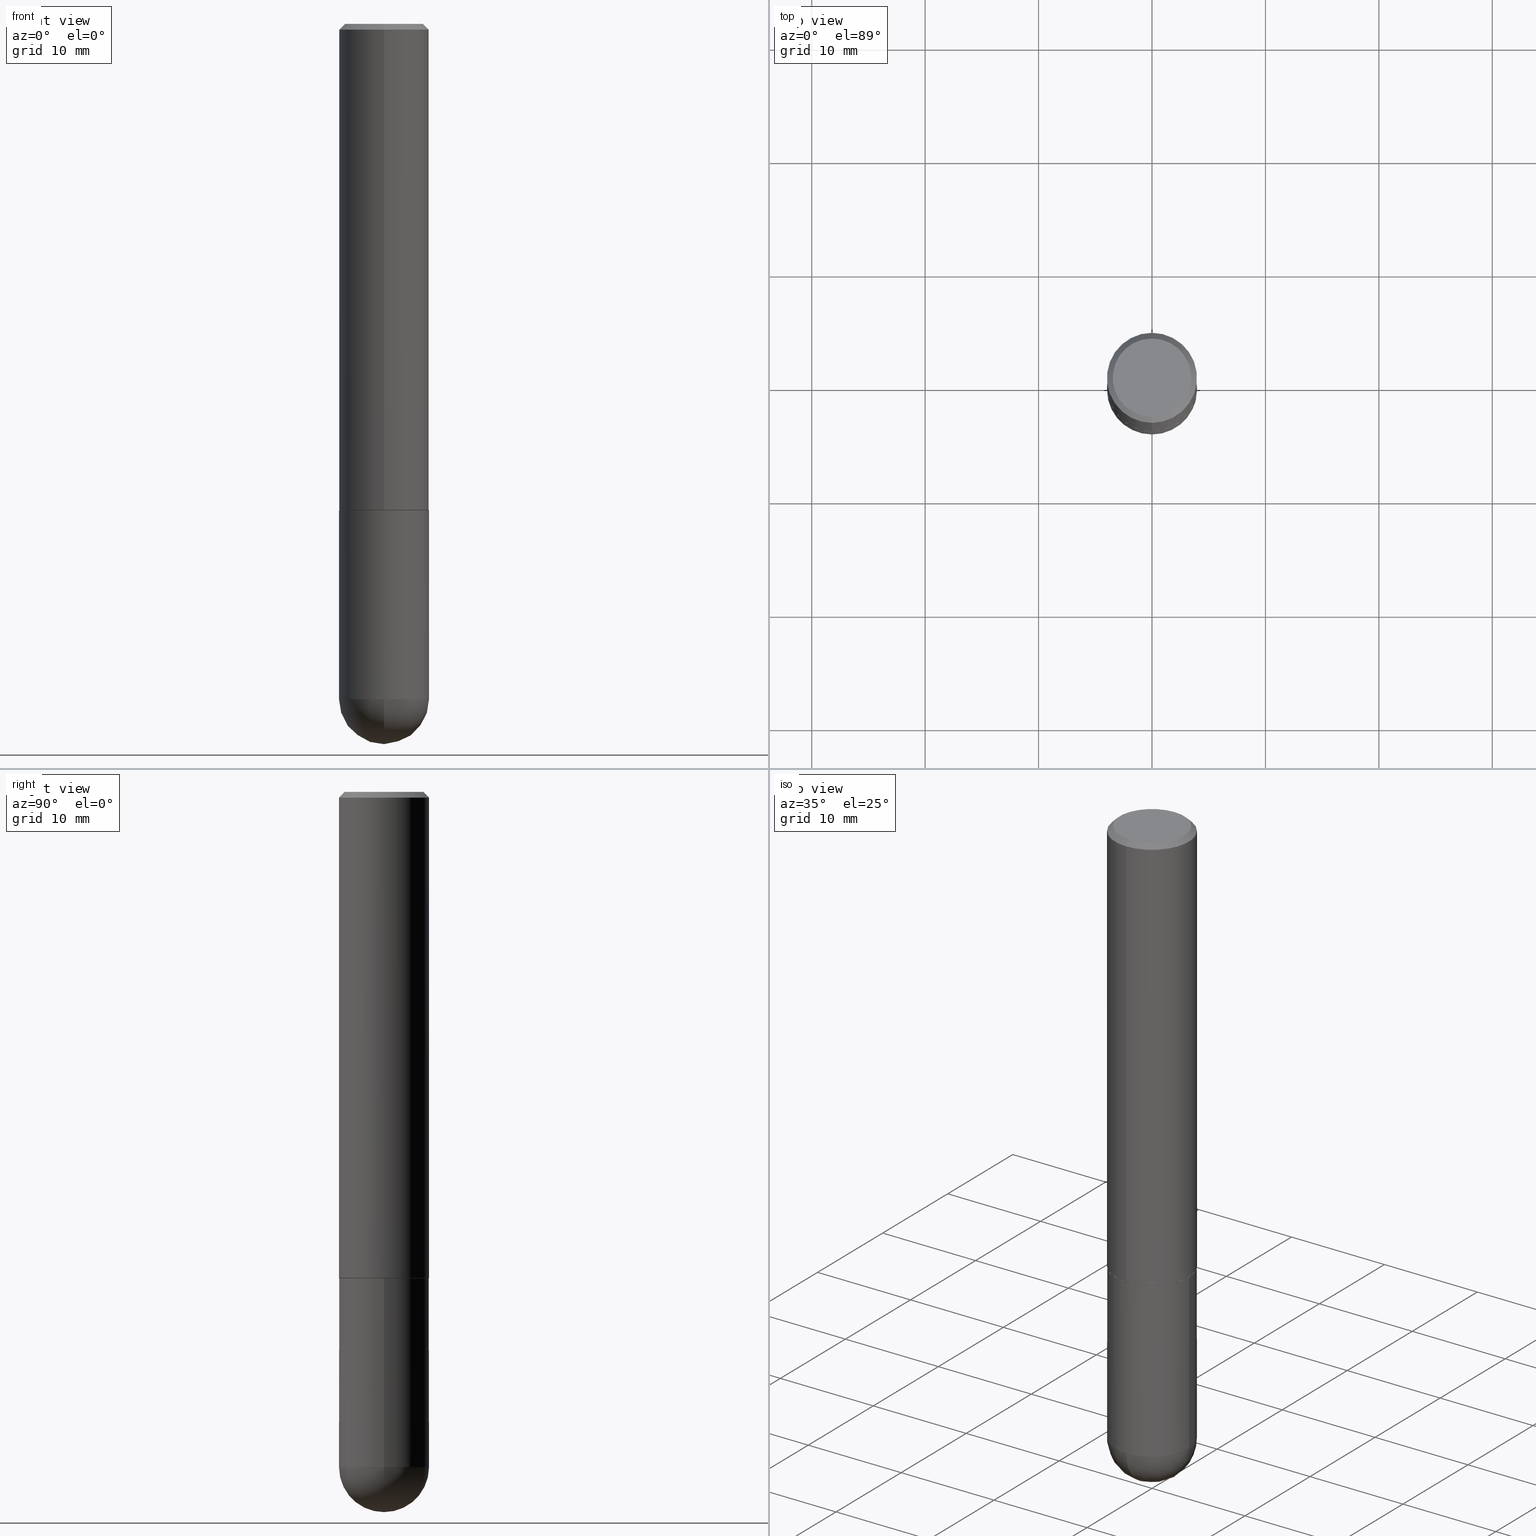
[diagram: canonical four-view strip — front | top / right | iso, engineering-drawing reading convention]
A machine part, canonical four-view strip (front | top / right | iso — engineering-drawing reading convention). The complete STEP part file that produces these views, byte-faithful:
ISO-10303-21;
HEADER;
FILE_DESCRIPTION (( 'STEP AP203' ),
    '1' );
FILE_NAME ('30540.STEP',
    '2024-02-21T16:39:43',
    ( '' ),
    ( '' ),
    'SwSTEP 2.0',
    'SolidWorks 2023',
    '' );
FILE_SCHEMA (( 'CONFIG_CONTROL_DESIGN' ));
ENDSEC;

DATA;
#1 = ORIENTED_EDGE ( 'NONE', *, *, #150, .T. ) ;
#2 = DIRECTION ( 'NONE',  ( -6.982962677686265922E-15, -1.000000000000000000, 3.519288880726909138E-15 ) ) ;
#3 = VERTEX_POINT ( 'NONE', #129 ) ;
#4 = VERTEX_POINT ( 'NONE', #388 ) ;
#5 = ADVANCED_FACE ( 'NONE', ( #305 ), #161, .T. ) ;
#6 = EDGE_CURVE ( 'NONE', #196, #306, #71, .T. ) ;
#7 = DIRECTION ( 'NONE',  ( -2.445372692446252269E-29, 3.491618979187682229E-15, 1.000000000000000000 ) ) ;
#8 = CARTESIAN_POINT ( 'NONE',  ( 4.890745384892512385E-31, -6.983237958375376735E-17, -0.02000000000000003511 ) ) ;
#9 = CARTESIAN_POINT ( 'NONE',  ( 5.731567514496413899E-29, -8.183159387913622595E-15, -2.343750000000000000 ) ) ;
#10 = ADVANCED_FACE ( 'NONE', ( #200 ), #192, .F. ) ;
#11 = AXIS2_PLACEMENT_3D ( 'NONE', #37, #156, #62 ) ;
#12 = APPROVAL_PERSON_ORGANIZATION ( #283, #134, #206 ) ;
#13 = DIRECTION ( 'NONE',  ( 1.000000000000000000, 0.000000000000000000, 0.000000000000000000 ) ) ;
#14 = DIRECTION ( 'NONE',  ( -1.000000000000000000, 6.982962677686265922E-15, -4.883557194083112340E-29 ) ) ;
#15 = CARTESIAN_POINT ( 'NONE',  ( 9.514286648347543521E-16, 0.1362500000000000933, -4.842607341460512364E-16 ) ) ;
#16 = ORIENTED_EDGE ( 'NONE', *, *, #223, .F. ) ;
#17 = CARTESIAN_POINT ( 'NONE',  ( 1.110223024625157329E-15, 0.1562500000000001388, -5.455654654980758660E-16 ) ) ;
#18 = AXIS2_PLACEMENT_3D ( 'NONE', #135, #58, #65 ) ;
#19 = APPROVAL_PERSON_ORGANIZATION ( #407, #392, #55 ) ;
#20 = CARTESIAN_POINT ( 'NONE',  ( 0.1562500000000000000, -6.984708418355709513E-15, -1.688000000000000167 ) ) ;
#21 = CC_DESIGN_PERSON_AND_ORGANIZATION_ASSIGNMENT ( #86, #250, ( #375 ) ) ;
#22 = CIRCLE ( 'NONE', #89, 0.1562500000000000278 ) ;
#23 = DATE_AND_TIME ( #376, #245 ) ;
#24 = APPROVAL_PERSON_ORGANIZATION ( #50, #355, #123 ) ;
#25 = DIRECTION ( 'NONE',  ( -2.445372692446252269E-29, 3.491618979187682229E-15, 1.000000000000000000 ) ) ;
#26 = PERSON_AND_ORGANIZATION_ROLE ( 'design_owner' ) ;
#27 = EDGE_LOOP ( 'NONE', ( #113, #44, #112, #203, #403 ) ) ;
#28 = DIRECTION ( 'NONE',  ( -2.445372692446252269E-29, 3.491618979187682229E-15, 1.000000000000000000 ) ) ;
#29 = LINE ( 'NONE', #231, #111 ) ;
#30 = EDGE_CURVE ( 'NONE', #168, #4, #142, .T. ) ;
#31 = PERSON_AND_ORGANIZATION ( #398, #298 ) ;
#32 = ORIENTED_EDGE ( 'NONE', *, *, #258, .F. ) ;
#33 = VECTOR ( 'NONE', #265, 39.37007874015748143 ) ;
#34 = CARTESIAN_POINT ( 'NONE',  ( -1.091087918388439336E-15, -0.1562500000000060785, -1.686999999999999611 ) ) ;
#35 = FACE_OUTER_BOUND ( 'NONE', #138, .T. ) ;
#36 = AXIS2_PLACEMENT_3D ( 'NONE', #56, #90, #217 ) ;
#37 = CARTESIAN_POINT ( 'NONE',  ( 0.000000000000000000, 0.000000000000000000, 0.000000000000000000 ) ) ;
#38 = DIRECTION ( 'NONE',  ( 2.445372692446251989E-29, -3.491618979187682229E-15, -1.000000000000000000 ) ) ;
#39 = CARTESIAN_POINT ( 'NONE',  ( 0.1562500000000000000, -1.091087918388479174E-15, 7.619026212181150377E-30 ) ) ;
#40 = CARTESIAN_POINT ( 'NONE',  ( 4.127951344840510809E-29, -5.893620499967230340E-15, -1.688000000000000167 ) ) ;
#41 = CONICAL_SURFACE ( 'NONE', #322, 0.1562500000000000278, 0.7853981633974468357 ) ;
#42 = VERTEX_POINT ( 'NONE', #410 ) ;
#43 = CARTESIAN_POINT ( 'NONE',  ( 0.000000000000000000, 0.000000000000000000, 0.000000000000000000 ) ) ;
#44 = ORIENTED_EDGE ( 'NONE', *, *, #30, .T. ) ;
#45 = DIRECTION ( 'NONE',  ( 0.000000000000000000, 0.000000000000000000, 1.000000000000000000 ) ) ;
#46 = ORIENTED_EDGE ( 'NONE', *, *, #220, .T. ) ;
#47 = AXIS2_PLACEMENT_3D ( 'NONE', #43, #304, #235 ) ;
#48 = VERTEX_POINT ( 'NONE', #121 ) ;
#49 = SECURITY_CLASSIFICATION_LEVEL ( 'unclassified' ) ;
#50 = PERSON_AND_ORGANIZATION ( #398, #298 ) ;
#51 = CALENDAR_DATE ( 2024, 21, 2 ) ;
#52 = EDGE_LOOP ( 'NONE', ( #368, #251 ) ) ;
#53 = DIRECTION ( 'NONE',  ( -2.445372692446252269E-29, 3.491618979187682229E-15, 1.000000000000000000 ) ) ;
#54 = CIRCLE ( 'NONE', #163, 0.1362500000000000933 ) ;
#55 = APPROVAL_ROLE ( '' ) ;
#56 = CARTESIAN_POINT ( 'NONE',  ( 4.127789104849273839E-29, -5.893852836868808719E-15, -1.688000000000000167 ) ) ;
#57 = ORIENTED_EDGE ( 'NONE', *, *, #258, .T. ) ;
#58 = DIRECTION ( 'NONE',  ( -1.000000000000000000, 6.982962677686265922E-15, -4.883557194083112340E-29 ) ) ;
#59 = DIRECTION ( 'NONE',  ( -6.982962677686265922E-15, -1.000000000000000000, 3.491618979187682229E-15 ) ) ;
#60 = CONICAL_SURFACE ( 'NONE', #362, 0.1552499999999999991, 0.7853981633975165577 ) ;
#61 = LOCAL_TIME ( 11, 39, 43.00000000000000000, #210 ) ;
#62 = DIRECTION ( 'NONE',  ( 1.000000000000000000, -6.982962677686266711E-15, 4.876176775795936353E-29 ) ) ;
#63 = ADVANCED_FACE ( 'NONE', ( #124 ), #383, .F. ) ;
#64 = CARTESIAN_POINT ( 'NONE',  ( 5.400447736582527652E-29, -8.657341756053672891E-15, -2.343750000000000000 ) ) ;
#65 = DIRECTION ( 'NONE',  ( 6.982962677686265922E-15, 1.000000000000000000, -3.496765431890251398E-15 ) ) ;
#66 = APPLICATION_PROTOCOL_DEFINITION ( 'international standard', 'config_control_design', 1994, #354 ) ;
#67 = CARTESIAN_POINT ( 'NONE',  ( 4.125343732156827639E-29, -5.890361217889620677E-15, -1.687000000000000055 ) ) ;
#68 =( LENGTH_UNIT ( ) NAMED_UNIT ( * ) SI_UNIT ( $, .METRE. ) );
#69 = MANIFOLD_SOLID_BREP ( 'Body-Move/Copy2[1]', #335 ) ;
#70 = DIRECTION ( 'NONE',  ( 6.982962677686265922E-15, 1.000000000000000000, -3.491618979187682229E-15 ) ) ;
#71 = CIRCLE ( 'NONE', #389, 0.1562500000000002220 ) ;
#72 = AXIS2_PLACEMENT_3D ( 'NONE', #350, #189, #222 ) ;
#73 = ORIENTED_EDGE ( 'NONE', *, *, #220, .F. ) ;
#74 = CARTESIAN_POINT ( 'NONE',  ( -1.110223024625101517E-15, -0.1562500000000085487, -2.343749999999999556 ) ) ;
#75 = EDGE_CURVE ( 'NONE', #3, #196, #319, .T. ) ;
#76 = EDGE_LOOP ( 'NONE', ( #87, #402, #175, #118 ) ) ;
#77 = ORIENTED_EDGE ( 'NONE', *, *, #75, .F. ) ;
#78 = DIRECTION ( 'NONE',  ( -2.445372692446252549E-29, 3.491618979187682229E-15, 1.000000000000000000 ) ) ;
#79 = DIRECTION ( 'NONE',  ( -2.445468806185136877E-29, 3.491481338843145188E-15, 1.000000000000000000 ) ) ;
#80 = ORIENTED_EDGE ( 'NONE', *, *, #325, .F. ) ;
#81 = PERSON_AND_ORGANIZATION ( #398, #298 ) ;
#82 = AXIS2_PLACEMENT_3D ( 'NONE', #318, #28, #2 ) ;
#83 = CIRCLE ( 'NONE', #72, 0.1562500000000000000 ) ;
#84 = CALENDAR_DATE ( 2024, 21, 2 ) ;
#85 = DIRECTION ( 'NONE',  ( 4.937700262164540154E-15, 0.7071067811865440200, -0.7071067811865510144 ) ) ;
#86 = PERSON_AND_ORGANIZATION ( #398, #298 ) ;
#87 = ORIENTED_EDGE ( 'NONE', *, *, #182, .F. ) ;
#88 = DIRECTION ( 'NONE',  ( -2.445468806185136597E-29, 3.491481338843145583E-15, 1.000000000000000000 ) ) ;
#89 = AXIS2_PLACEMENT_3D ( 'NONE', #8, #360, #227 ) ;
#90 = DIRECTION ( 'NONE',  ( -2.445372692446251989E-29, 3.491618979187682229E-15, 1.000000000000000000 ) ) ;
#91 = CC_DESIGN_APPROVAL ( #392, ( #375 ) ) ;
#92 = EDGE_LOOP ( 'NONE', ( #116, #183, #201, #352 ) ) ;
#93 = CARTESIAN_POINT ( 'NONE',  ( -1.084104955710751547E-15, -0.1552500000000059110, -1.687999999999999501 ) ) ;
#94 = EDGE_CURVE ( 'NONE', #169, #48, #323, .T. ) ;
#95 = CONICAL_SURFACE ( 'NONE', #336, 0.1552499999999999991, 0.7853981633975165577 ) ;
#96 = FACE_OUTER_BOUND ( 'NONE', #369, .T. ) ;
#97 = PRODUCT_DEFINITION_FORMATION_WITH_SPECIFIED_SOURCE ( 'ANY', '', #273, .NOT_KNOWN. ) ;
#98 = EDGE_CURVE ( 'NONE', #337, #285, #29, .T. ) ;
#99 = DIRECTION ( 'NONE',  ( -2.445372692446252269E-29, 3.491618979187682229E-15, 1.000000000000000000 ) ) ;
#100 = UNCERTAINTY_MEASURE_WITH_UNIT (LENGTH_MEASURE( 1.000000000000000082E-05 ), #162, 'distance_accuracy_value', 'NONE');
#101 = DIRECTION ( 'NONE',  ( -2.445468806185136877E-29, 3.491481338843145188E-15, 1.000000000000000000 ) ) ;
#102 = DIRECTION ( 'NONE',  ( -6.982962677686265922E-15, -1.000000000000000000, 3.491618979187682623E-15 ) ) ;
#103 = DIRECTION ( 'NONE',  ( 2.445372692446252269E-29, -3.491618979187682229E-15, -1.000000000000000000 ) ) ;
#104 = CIRCLE ( 'NONE', #310, 0.1562500000000002498 ) ;
#105 = DIRECTION ( 'NONE',  ( -2.445372692446252269E-29, 3.491618979187682229E-15, 1.000000000000000000 ) ) ;
#106 = DIRECTION ( 'NONE',  ( 1.000000000000000000, -6.982962677686262766E-15, 0.000000000000000000 ) ) ;
#107 = CARTESIAN_POINT ( 'NONE',  ( 1.106670310946397649E-15, 0.1552499999999940872, -1.688000000000000611 ) ) ;
#108 = CARTESIAN_POINT ( 'NONE',  ( 1.110223024625178431E-15, 0.1562499999999943379, -1.687000000000000499 ) ) ;
#109 = ORIENTED_EDGE ( 'NONE', *, *, #148, .T. ) ;
#110 =( NAMED_UNIT ( * ) SI_UNIT ( $, .STERADIAN. ) SOLID_ANGLE_UNIT ( ) );
#111 = VECTOR ( 'NONE', #145, 39.37007874015748143 ) ;
#112 = ORIENTED_EDGE ( 'NONE', *, *, #171, .F. ) ;
#113 = ORIENTED_EDGE ( 'NONE', *, *, #223, .T. ) ;
#114 = DIRECTION ( 'NONE',  ( 2.438088387897960049E-29, -3.491481338843145188E-15, -1.000000000000000000 ) ) ;
#115 = FACE_OUTER_BOUND ( 'NONE', #27, .T. ) ;
#116 = ORIENTED_EDGE ( 'NONE', *, *, #6, .T. ) ;
#117 = PERSON_AND_ORGANIZATION_ROLE ( 'creator' ) ;
#118 = ORIENTED_EDGE ( 'NONE', *, *, #94, .F. ) ;
#119 = CIRCLE ( 'NONE', #357, 0.1562500000000000000 ) ;
#120 = APPROVAL_DATE_TIME ( #379, #392 ) ;
#121 = CARTESIAN_POINT ( 'NONE',  ( 1.091087918388479765E-15, 0.1562499999999999722, -0.02000000000000057981 ) ) ;
#122 = VERTEX_POINT ( 'NONE', #107 ) ;
#123 = APPROVAL_ROLE ( '' ) ;
#124 = FACE_OUTER_BOUND ( 'NONE', #52, .T. ) ;
#125 = CC_DESIGN_DATE_AND_TIME_ASSIGNMENT ( #216, #247, ( #219 ) ) ;
#126 = DIRECTION ( 'NONE',  ( -6.982962677686265922E-15, -1.000000000000000000, 3.491618979187682229E-15 ) ) ;
#127 = EDGE_CURVE ( 'NONE', #317, #151, #236, .T. ) ;
#128 = CIRCLE ( 'NONE', #82, 0.1552499999999999991 ) ;
#129 = CARTESIAN_POINT ( 'NONE',  ( -1.084104955710751547E-15, -0.1552500000000059110, -1.687999999999999501 ) ) ;
#130 = CC_DESIGN_PERSON_AND_ORGANIZATION_ASSIGNMENT ( #81, #382, ( #97 ) ) ;
#131 = AXIS2_PLACEMENT_3D ( 'NONE', #238, #397, #167 ) ;
#132 = DIRECTION ( 'NONE',  ( 6.982962677686265922E-15, 1.000000000000000000, 0.000000000000000000 ) ) ;
#133 = SPHERICAL_SURFACE ( 'NONE', #18, 0.1562500000000002498 ) ;
#134 = APPROVAL ( #177, 'UNSPECIFIED' ) ;
#135 = CARTESIAN_POINT ( 'NONE',  ( 5.400447736582527652E-29, -8.657341756053672891E-15, -2.343750000000000000 ) ) ;
#136 = AXIS2_PLACEMENT_3D ( 'NONE', #358, #25, #353 ) ;
#137 = CC_DESIGN_APPROVAL ( #355, ( #219 ) ) ;
#138 = EDGE_LOOP ( 'NONE', ( #308, #281, #248, #16 ) ) ;
#139 = CARTESIAN_POINT ( 'NONE',  ( 5.789233224183170584E-29, -9.193318162129576161E-15, -2.500000000000000000 ) ) ;
#140 = EDGE_CURVE ( 'NONE', #151, #290, #359, .T. ) ;
#141 = DIRECTION ( 'NONE',  ( 6.982962677686265922E-15, 1.000000000000000000, -3.496765431890251398E-15 ) ) ;
#142 = LINE ( 'NONE', #400, #366 ) ;
#143 = VERTEX_POINT ( 'NONE', #139 ) ;
#144 = CARTESIAN_POINT ( 'NONE',  ( 4.127789104849273839E-29, -5.893852836868808719E-15, -1.688000000000000167 ) ) ;
#145 = DIRECTION ( 'NONE',  ( -4.851104656540956386E-15, -0.7071067811865489050, -0.7071067811865461294 ) ) ;
#146 = COORDINATED_UNIVERSAL_TIME_OFFSET ( 5, 0, .BEHIND. ) ;
#147 = PERSON_AND_ORGANIZATION ( #398, #298 ) ;
#148 = EDGE_CURVE ( 'NONE', #169, #337, #199, .T. ) ;
#149 = PERSON_AND_ORGANIZATION ( #398, #298 ) ;
#150 = EDGE_CURVE ( 'NONE', #196, #285, #387, .T. ) ;
#151 = VERTEX_POINT ( 'NONE', #321 ) ;
#152 = DIRECTION ( 'NONE',  ( -6.982962677686265922E-15, -1.000000000000000000, 3.496765431890251792E-15 ) ) ;
#153 = CC_DESIGN_PERSON_AND_ORGANIZATION_ASSIGNMENT ( #149, #243, ( #97 ) ) ;
#154 = DIRECTION ( 'NONE',  ( 1.000000000000000000, -6.982962677686266711E-15, 4.876176775795936353E-29 ) ) ;
#155 = AXIS2_PLACEMENT_3D ( 'NONE', #40, #229, #309 ) ;
#156 = DIRECTION ( 'NONE',  ( -2.445468806185136597E-29, 3.491481338843145583E-15, 1.000000000000000000 ) ) ;
#157 = AXIS2_PLACEMENT_3D ( 'NONE', #333, #105, #59 ) ;
#158 = CARTESIAN_POINT ( 'NONE',  ( 4.125343732156827639E-29, -5.890361217889620677E-15, -1.687000000000000055 ) ) ;
#159 = ADVANCED_FACE ( 'NONE', ( #115 ), #252, .T. ) ;
#160 = CARTESIAN_POINT ( 'NONE',  ( 4.890745384892512385E-31, -6.983237958375376735E-17, -0.02000000000000003511 ) ) ;
#161 = CONICAL_SURFACE ( 'NONE', #131, 0.1562500000000000278, 0.7853981633974468357 ) ;
#162 =( CONVERSION_BASED_UNIT ( 'INCH', #173 ) LENGTH_UNIT ( ) NAMED_UNIT ( #221 ) );
#163 = AXIS2_PLACEMENT_3D ( 'NONE', #255, #7, #126 ) ;
#164 = LOCAL_TIME ( 11, 39, 43.00000000000000000, #146 ) ;
#165 = CARTESIAN_POINT ( 'NONE',  ( 5.731567514496413899E-29, -8.183159387913622595E-15, -2.343750000000000000 ) ) ;
#166 = FACE_OUTER_BOUND ( 'NONE', #339, .T. ) ;
#167 = DIRECTION ( 'NONE',  ( 6.982962677686266711E-15, 1.000000000000000000, -3.496765431890256131E-15 ) ) ;
#168 = VERTEX_POINT ( 'NONE', #262 ) ;
#169 = VERTEX_POINT ( 'NONE', #391 ) ;
#170 = CYLINDRICAL_SURFACE ( 'NONE', #47, 0.1562500000000001388 ) ;
#171 = EDGE_CURVE ( 'NONE', #290, #4, #83, .T. ) ;
#172 = ORIENTED_EDGE ( 'NONE', *, *, #300, .F. ) ;
#173 = LENGTH_MEASURE_WITH_UNIT ( LENGTH_MEASURE( 0.02539999999999999897 ), #68 );
#174 = AXIS2_PLACEMENT_3D ( 'NONE', #198, #114, #338 ) ;
#175 = ORIENTED_EDGE ( 'NONE', *, *, #261, .T. ) ;
#176 = SHAPE_DEFINITION_REPRESENTATION ( #280, #264 ) ;
#177 = APPROVAL_STATUS ( 'not_yet_approved' ) ;
#178 = DIRECTION ( 'NONE',  ( -6.982962677686266711E-15, -1.000000000000000000, 3.496765431890256131E-15 ) ) ;
#179 = CIRCLE ( 'NONE', #406, 0.1562500000000000278 ) ;
#180 = APPROVAL_STATUS ( 'not_yet_approved' ) ;
#181 = DIRECTION ( 'NONE',  ( -6.982962677686265922E-15, -1.000000000000000000, 3.519288880726909138E-15 ) ) ;
#182 = EDGE_CURVE ( 'NONE', #337, #169, #54, .T. ) ;
#183 = ORIENTED_EDGE ( 'NONE', *, *, #302, .T. ) ;
#184 = CARTESIAN_POINT ( 'NONE',  ( -1.091087918388479962E-15, -0.1562500000000001388, 5.455654654980758660E-16 ) ) ;
#185 = AXIS2_PLACEMENT_3D ( 'NONE', #232, #363, #106 ) ;
#186 = CARTESIAN_POINT ( 'NONE',  ( 0.000000000000000000, 0.000000000000000000, 0.000000000000000000 ) ) ;
#187 = DIRECTION ( 'NONE',  ( -2.445468806185136597E-29, 3.491481338843145583E-15, 1.000000000000000000 ) ) ;
#188 = AXIS2_PLACEMENT_3D ( 'NONE', #165, #286, #328 ) ;
#189 = DIRECTION ( 'NONE',  ( -2.445468806185136597E-29, 3.491481338843145583E-15, 1.000000000000000000 ) ) ;
#190 = LOCAL_TIME ( 11, 39, 43.00000000000000000, #282 ) ;
#191 = EDGE_CURVE ( 'NONE', #3, #122, #324, .T. ) ;
#192 = PLANE ( 'NONE',  #197 ) ;
#193 = DIRECTION ( 'NONE',  ( 1.000000000000000000, -6.982962677686262766E-15, 0.000000000000000000 ) ) ;
#194 = ORIENTED_EDGE ( 'NONE', *, *, #191, .T. ) ;
#195 = CARTESIAN_POINT ( 'NONE',  ( -1.071952812151801412E-15, -0.1562500000000001110, -0.01999999999999948694 ) ) ;
#196 = VERTEX_POINT ( 'NONE', #34 ) ;
#197 = AXIS2_PLACEMENT_3D ( 'NONE', #15, #38, #70 ) ;
#198 = CARTESIAN_POINT ( 'NONE',  ( 1.091087918388520392E-15, 0.1562499999999940881, -1.688000000000000611 ) ) ;
#199 = CIRCLE ( 'NONE', #157, 0.1362500000000000933 ) ;
#200 = FACE_OUTER_BOUND ( 'NONE', #411, .T. ) ;
#201 = ORIENTED_EDGE ( 'NONE', *, *, #261, .F. ) ;
#202 = MANIFOLD_SOLID_BREP ( 'Body-Move/Copy2[2]', #356 ) ;
#203 = ORIENTED_EDGE ( 'NONE', *, *, #140, .F. ) ;
#204 = ORIENTED_EDGE ( 'NONE', *, *, #259, .F. ) ;
#205 = FACE_OUTER_BOUND ( 'NONE', #279, .T. ) ;
#206 = APPROVAL_ROLE ( '' ) ;
#207 = AXIS2_PLACEMENT_3D ( 'NONE', #9, #88, #299 ) ;
#208 = ADVANCED_FACE ( 'NONE', ( #386 ), #41, .T. ) ;
#209 = CARTESIAN_POINT ( 'NONE',  ( 1.091087918388479765E-15, 0.1562499999999999722, -0.02000000000000057981 ) ) ;
#210 = COORDINATED_UNIVERSAL_TIME_OFFSET ( 5, 0, .BEHIND. ) ;
#211 = ORIENTED_EDGE ( 'NONE', *, *, #171, .T. ) ;
#212 = APPROVAL_DATE_TIME ( #348, #355 ) ;
#213 = ORIENTED_EDGE ( 'NONE', *, *, #271, .T. ) ;
#214 = DIRECTION ( 'NONE',  ( -1.000000000000000000, 7.105427357601001070E-15, -4.926315508542082329E-29 ) ) ;
#215 = CIRCLE ( 'NONE', #207, 0.1562500000000000000 ) ;
#216 = DATE_AND_TIME ( #344, #164 ) ;
#217 = DIRECTION ( 'NONE',  ( -6.982962677686265922E-15, -1.000000000000000000, 3.491618979187682229E-15 ) ) ;
#218 = ADVANCED_FACE ( 'NONE', ( #96 ), #331, .T. ) ;
#219 = PRODUCT_DEFINITION ( 'UNKNOWN', '', #97, #278 ) ;
#220 = EDGE_CURVE ( 'NONE', #122, #306, #412, .T. ) ;
#221 = DIMENSIONAL_EXPONENTS ( 1.000000000000000000, 0.000000000000000000, 0.000000000000000000, 0.000000000000000000, 0.000000000000000000, 0.000000000000000000, 0.000000000000000000 ) ;
#222 = DIRECTION ( 'NONE',  ( 1.000000000000000000, -6.982962677686269077E-15, 0.000000000000000000 ) ) ;
#223 = EDGE_CURVE ( 'NONE', #42, #168, #215, .T. ) ;
#224 = CC_DESIGN_PERSON_AND_ORGANIZATION_ASSIGNMENT ( #31, #26, ( #273 ) ) ;
#225 = DIRECTION ( 'NONE',  ( 6.982962677686266711E-15, 1.000000000000000000, -3.496765431890256131E-15 ) ) ;
#226 = ADVANCED_FACE ( 'NONE', ( #327 ), #381, .T. ) ;
#227 = DIRECTION ( 'NONE',  ( -6.982962677686266711E-15, -1.000000000000000000, 3.496765431890256131E-15 ) ) ;
#228 = CIRCLE ( 'NONE', #155, 0.1562500000000000000 ) ;
#229 = DIRECTION ( 'NONE',  ( -2.445468806185136597E-29, 3.491481338843145583E-15, 1.000000000000000000 ) ) ;
#230 = DIRECTION ( 'NONE',  ( -2.445372692446252269E-29, 3.491618979187682229E-15, 1.000000000000000000 ) ) ;
#231 = CARTESIAN_POINT ( 'NONE',  ( -1.071952812151801412E-15, -0.1562500000000001110, -0.01999999999999948694 ) ) ;
#232 = CARTESIAN_POINT ( 'NONE',  ( 5.731567514496413899E-29, -8.183159387913622595E-15, -2.343750000000000000 ) ) ;
#233 = ORIENTED_EDGE ( 'NONE', *, *, #94, .T. ) ;
#234 = FACE_OUTER_BOUND ( 'NONE', #371, .T. ) ;
#235 = DIRECTION ( 'NONE',  ( -6.982962677686265922E-15, -1.000000000000000000, 3.491618979187682623E-15 ) ) ;
#236 = CIRCLE ( 'NONE', #188, 0.1562500000000000000 ) ;
#237 = CC_DESIGN_APPROVAL ( #134, ( #97 ) ) ;
#238 = CARTESIAN_POINT ( 'NONE',  ( 4.890745384892512385E-31, -6.983237958375376735E-17, -0.02000000000000003511 ) ) ;
#239 = ORIENTED_EDGE ( 'NONE', *, *, #6, .F. ) ;
#240 = CARTESIAN_POINT ( 'NONE',  ( 5.400447736582527652E-29, -8.657341756053672891E-15, -2.343750000000000000 ) ) ;
#241 = ORIENTED_EDGE ( 'NONE', *, *, #302, .F. ) ;
#242 = ORIENTED_EDGE ( 'NONE', *, *, #148, .F. ) ;
#243 = PERSON_AND_ORGANIZATION_ROLE ( 'creator' ) ;
#244 = EDGE_CURVE ( 'NONE', #48, #285, #22, .T. ) ;
#245 = LOCAL_TIME ( 11, 39, 43.00000000000000000, #253 ) ;
#246 = CC_DESIGN_PERSON_AND_ORGANIZATION_ASSIGNMENT ( #147, #117, ( #219 ) ) ;
#247 = DATE_TIME_ROLE ( 'creation_date' ) ;
#248 = ORIENTED_EDGE ( 'NONE', *, *, #326, .F. ) ;
#249 = EDGE_CURVE ( 'NONE', #143, #42, #260, .T. ) ;
#250 = PERSON_AND_ORGANIZATION_ROLE ( 'classification_officer' ) ;
#251 = ORIENTED_EDGE ( 'NONE', *, *, #271, .F. ) ;
#252 = CYLINDRICAL_SURFACE ( 'NONE', #11, 0.1562500000000000000 ) ;
#253 = COORDINATED_UNIVERSAL_TIME_OFFSET ( 5, 0, .BEHIND. ) ;
#254 = ADVANCED_FACE ( 'NONE', ( #35 ), #133, .T. ) ;
#255 = CARTESIAN_POINT ( 'NONE',  ( 4.170655623331656744E-46, -5.955059682748427173E-32, -1.705529646345850364E-17 ) ) ;
#256 = CIRCLE ( 'NONE', #390, 0.1562500000000002220 ) ;
#257 = CC_DESIGN_SECURITY_CLASSIFICATION ( #375, ( #97 ) ) ;
#258 = EDGE_CURVE ( 'NONE', #306, #196, #256, .T. ) ;
#259 = EDGE_CURVE ( 'NONE', #143, #317, #104, .T. ) ;
#260 = CIRCLE ( 'NONE', #330, 0.1562500000000002498 ) ;
#261 = EDGE_CURVE ( 'NONE', #285, #48, #179, .T. ) ;
#262 = CARTESIAN_POINT ( 'NONE',  ( -0.1562500000000000000, -5.928166919315270321E-15, -2.343750000000000000 ) ) ;
#263 = ADVANCED_FACE ( 'NONE', ( #316 ), #60, .T. ) ;
#264 = ADVANCED_BREP_SHAPE_REPRESENTATION ( '30540', ( #69, #202, #315 ), #346 ) ;
#265 = DIRECTION ( 'NONE',  ( -2.445372692446252549E-29, 3.491618979187682229E-15, 1.000000000000000000 ) ) ;
#266 = DIRECTION ( 'NONE',  ( -2.445372692446252269E-29, 3.491618979187682229E-15, 1.000000000000000000 ) ) ;
#267 = DIRECTION ( 'NONE',  ( -7.105427357601000281E-15, -1.000000000000000000, 0.000000000000000000 ) ) ;
#268 = VECTOR ( 'NONE', #101, 39.37007874015748143 ) ;
#269 = DIRECTION ( 'NONE',  ( -2.445468806185136597E-29, 3.491481338843145583E-15, 1.000000000000000000 ) ) ;
#270 = EDGE_LOOP ( 'NONE', ( #194, #46, #239, #77 ) ) ;
#271 = EDGE_CURVE ( 'NONE', #122, #3, #128, .T. ) ;
#272 = PLANE ( 'NONE',  #174 ) ;
#273 = PRODUCT ( '30540', '30540', '', ( #334 ) ) ;
#274 = ADVANCED_FACE ( 'NONE', ( #370 ), #272, .F. ) ;
#275 = ORIENTED_EDGE ( 'NONE', *, *, #75, .T. ) ;
#276 = ADVANCED_FACE ( 'NONE', ( #166 ), #170, .T. ) ;
#277 = DIRECTION ( 'NONE',  ( -2.445372692446252269E-29, 3.491618979187682229E-15, 1.000000000000000000 ) ) ;
#278 = DESIGN_CONTEXT ( 'detailed design', #289, 'design' ) ;
#279 = EDGE_LOOP ( 'NONE', ( #73, #213, #275, #32 ) ) ;
#280 = PRODUCT_DEFINITION_SHAPE ( 'NONE', 'NONE',  #219 ) ;
#281 = ORIENTED_EDGE ( 'NONE', *, *, #259, .T. ) ;
#282 = COORDINATED_UNIVERSAL_TIME_OFFSET ( 5, 0, .BEHIND. ) ;
#283 = PERSON_AND_ORGANIZATION ( #398, #298 ) ;
#284 = ADVANCED_FACE ( 'NONE', ( #234 ), #307, .T. ) ;
#285 = VERTEX_POINT ( 'NONE', #195 ) ;
#286 = DIRECTION ( 'NONE',  ( -2.445468806185136597E-29, 3.491481338843145583E-15, 1.000000000000000000 ) ) ;
#287 = DATE_AND_TIME ( #311, #190 ) ;
#288 = DIRECTION ( 'NONE',  ( -2.445372692446252269E-29, 3.491618979187682229E-15, 1.000000000000000000 ) ) ;
#289 = APPLICATION_CONTEXT ( 'configuration controlled 3d designs of mechanical parts and assemblies' ) ;
#290 = VERTEX_POINT ( 'NONE', #20 ) ;
#291 = CARTESIAN_POINT ( 'NONE',  ( 4.127789104849273839E-29, -5.893852836868808719E-15, -1.688000000000000167 ) ) ;
#292 = DIRECTION ( 'NONE',  ( -4.937700262164884886E-15, -0.7071067811865933139, 0.7071067811865017205 ) ) ;
#293 = COORDINATED_UNIVERSAL_TIME_OFFSET ( 5, 0, .BEHIND. ) ;
#294 = EDGE_LOOP ( 'NONE', ( #211, #377 ) ) ;
#295 = VECTOR ( 'NONE', #85, 39.37007874015748143 ) ;
#296 = PRODUCT_RELATED_PRODUCT_CATEGORY ( 'detail', '', ( #273 ) ) ;
#297 = CARTESIAN_POINT ( 'NONE',  ( 0.000000000000000000, 0.000000000000000000, 0.000000000000000000 ) ) ;
#298 = ORGANIZATION ( 'UNSPECIFIED', 'UNSPECIFIED', '' ) ;
#299 = DIRECTION ( 'NONE',  ( 1.000000000000000000, -6.982962677686262766E-15, 0.000000000000000000 ) ) ;
#300 = EDGE_CURVE ( 'NONE', #4, #290, #228, .T. ) ;
#301 = DIRECTION ( 'NONE',  ( 5.024295867788404755E-15, 0.7071067811865981989, 0.7071067811864968355 ) ) ;
#302 = EDGE_CURVE ( 'NONE', #306, #48, #396, .T. ) ;
#303 = CARTESIAN_POINT ( 'NONE',  ( 0.000000000000000000, 0.000000000000000000, 0.000000000000000000 ) ) ;
#304 = DIRECTION ( 'NONE',  ( -2.445372692446252269E-29, 3.491618979187682229E-15, 1.000000000000000000 ) ) ;
#305 = FACE_OUTER_BOUND ( 'NONE', #399, .T. ) ;
#306 = VERTEX_POINT ( 'NONE', #108 ) ;
#307 = SPHERICAL_SURFACE ( 'NONE', #345, 0.1562500000000002498 ) ;
#308 = ORIENTED_EDGE ( 'NONE', *, *, #249, .F. ) ;
#309 = DIRECTION ( 'NONE',  ( 1.000000000000000000, -6.982962677686269077E-15, 0.000000000000000000 ) ) ;
#310 = AXIS2_PLACEMENT_3D ( 'NONE', #393, #214, #267 ) ;
#311 = CALENDAR_DATE ( 2024, 21, 2 ) ;
#312 = ORIENTED_EDGE ( 'NONE', *, *, #30, .F. ) ;
#313 = APPLICATION_PROTOCOL_DEFINITION ( 'international standard', 'config_control_design', 1994, #289 ) ;
#314 = VECTOR ( 'NONE', #301, 39.37007874015748143 ) ;
#315 = AXIS2_PLACEMENT_3D ( 'NONE', #303, #45, #13 ) ;
#316 = FACE_OUTER_BOUND ( 'NONE', #270, .T. ) ;
#317 = VERTEX_POINT ( 'NONE', #74 ) ;
#318 = CARTESIAN_POINT ( 'NONE',  ( 4.127789104849273839E-29, -5.893852836868808719E-15, -1.688000000000000167 ) ) ;
#319 = LINE ( 'NONE', #93, #384 ) ;
#320 = ORIENTED_EDGE ( 'NONE', *, *, #244, .T. ) ;
#321 = CARTESIAN_POINT ( 'NONE',  ( 0.1562500000000000000, -8.129477862328905246E-15, -2.343750000000000000 ) ) ;
#322 = AXIS2_PLACEMENT_3D ( 'NONE', #160, #103, #225 ) ;
#323 = LINE ( 'NONE', #209, #295 ) ;
#324 = CIRCLE ( 'NONE', #136, 0.1552499999999999991 ) ;
#325 = EDGE_CURVE ( 'NONE', #151, #42, #372, .T. ) ;
#326 = EDGE_CURVE ( 'NONE', #168, #317, #119, .T. ) ;
#327 = FACE_OUTER_BOUND ( 'NONE', #92, .T. ) ;
#328 = DIRECTION ( 'NONE',  ( 1.000000000000000000, -6.982962677686262766E-15, 0.000000000000000000 ) ) ;
#329 = CARTESIAN_POINT ( 'NONE',  ( 1.103117597267596553E-15, 0.1552499999999940872, -1.688000000000000611 ) ) ;
#330 = AXIS2_PLACEMENT_3D ( 'NONE', #64, #361, #132 ) ;
#331 = CYLINDRICAL_SURFACE ( 'NONE', #367, 0.1562500000000000000 ) ;
#332 = CARTESIAN_POINT ( 'NONE',  ( -1.003347832174086672E-15, -0.1362500000000000933, 4.586777894508634656E-16 ) ) ;
#333 = CARTESIAN_POINT ( 'NONE',  ( 4.170655623331656744E-46, -5.955059682748427173E-32, -1.705529646345850364E-17 ) ) ;
#334 = MECHANICAL_CONTEXT ( 'NONE', #354, 'mechanical' ) ;
#335 = CLOSED_SHELL ( 'NONE', ( #159, #254, #284, #274, #218 ) ) ;
#336 = AXIS2_PLACEMENT_3D ( 'NONE', #144, #277, #342 ) ;
#337 = VERTEX_POINT ( 'NONE', #332 ) ;
#338 = DIRECTION ( 'NONE',  ( -1.000000000000000000, 6.982962677686265922E-15, -4.876176775795935793E-29 ) ) ;
#339 = EDGE_LOOP ( 'NONE', ( #241, #57, #1, #380 ) ) ;
#340 = ORIENTED_EDGE ( 'NONE', *, *, #127, .F. ) ;
#341 = ORIENTED_EDGE ( 'NONE', *, *, #140, .T. ) ;
#342 = DIRECTION ( 'NONE',  ( -6.982962677686265922E-15, -1.000000000000000000, 3.519288880726909138E-15 ) ) ;
#343 = ORIENTED_EDGE ( 'NONE', *, *, #182, .T. ) ;
#344 = CALENDAR_DATE ( 2024, 21, 2 ) ;
#345 = AXIS2_PLACEMENT_3D ( 'NONE', #240, #14, #141 ) ;
#346 =( GEOMETRIC_REPRESENTATION_CONTEXT ( 3 ) GLOBAL_UNCERTAINTY_ASSIGNED_CONTEXT ( ( #100 ) ) GLOBAL_UNIT_ASSIGNED_CONTEXT ( ( #162, #404, #110 ) ) REPRESENTATION_CONTEXT ( 'NONE', 'WORKASPACE' ) );
#347 = CC_DESIGN_DATE_AND_TIME_ASSIGNMENT ( #287, #409, ( #375 ) ) ;
#348 = DATE_AND_TIME ( #51, #374 ) ;
#349 = ORIENTED_EDGE ( 'NONE', *, *, #249, .T. ) ;
#350 = CARTESIAN_POINT ( 'NONE',  ( 4.127951344840510809E-29, -5.893620499967230340E-15, -1.688000000000000167 ) ) ;
#351 = APPROVAL_STATUS ( 'not_yet_approved' ) ;
#352 = ORIENTED_EDGE ( 'NONE', *, *, #150, .F. ) ;
#353 = DIRECTION ( 'NONE',  ( -6.982962677686265922E-15, -1.000000000000000000, 3.519288880726909138E-15 ) ) ;
#354 = APPLICATION_CONTEXT ( 'configuration controlled 3d designs of mechanical parts and assemblies' ) ;
#355 = APPROVAL ( #351, 'UNSPECIFIED' ) ;
#356 = CLOSED_SHELL ( 'NONE', ( #263, #226, #208, #5, #276, #378, #63, #10 ) ) ;
#357 = AXIS2_PLACEMENT_3D ( 'NONE', #365, #269, #193 ) ;
#358 = CARTESIAN_POINT ( 'NONE',  ( 4.127789104849273839E-29, -5.893852836868808719E-15, -1.688000000000000167 ) ) ;
#359 = LINE ( 'NONE', #39, #268 ) ;
#360 = DIRECTION ( 'NONE',  ( -2.445372692446252269E-29, 3.491618979187682229E-15, 1.000000000000000000 ) ) ;
#361 = DIRECTION ( 'NONE',  ( 1.000000000000000000, -6.982962677686265922E-15, 4.883557194083112340E-29 ) ) ;
#362 = AXIS2_PLACEMENT_3D ( 'NONE', #291, #288, #181 ) ;
#363 = DIRECTION ( 'NONE',  ( -2.445468806185136597E-29, 3.491481338843145583E-15, 1.000000000000000000 ) ) ;
#364 = DIRECTION ( 'NONE',  ( -6.982962677686265922E-15, -1.000000000000000000, 3.496765431890251792E-15 ) ) ;
#365 = CARTESIAN_POINT ( 'NONE',  ( 5.731567514496413899E-29, -8.183159387913622595E-15, -2.343750000000000000 ) ) ;
#366 = VECTOR ( 'NONE', #79, 39.37007874015748143 ) ;
#367 = AXIS2_PLACEMENT_3D ( 'NONE', #186, #187, #154 ) ;
#368 = ORIENTED_EDGE ( 'NONE', *, *, #191, .F. ) ;
#369 = EDGE_LOOP ( 'NONE', ( #312, #408, #401, #341, #172 ) ) ;
#370 = FACE_OUTER_BOUND ( 'NONE', #294, .T. ) ;
#371 = EDGE_LOOP ( 'NONE', ( #204, #349, #80, #340 ) ) ;
#372 = CIRCLE ( 'NONE', #185, 0.1562500000000000000 ) ;
#373 = APPROVAL_DATE_TIME ( #23, #134 ) ;
#374 = LOCAL_TIME ( 11, 39, 43.00000000000000000, #293 ) ;
#375 = SECURITY_CLASSIFICATION ( '', '', #49 ) ;
#376 = CALENDAR_DATE ( 2024, 21, 2 ) ;
#377 = ORIENTED_EDGE ( 'NONE', *, *, #300, .T. ) ;
#378 = ADVANCED_FACE ( 'NONE', ( #205 ), #95, .T. ) ;
#379 = DATE_AND_TIME ( #84, #61 ) ;
#380 = ORIENTED_EDGE ( 'NONE', *, *, #244, .F. ) ;
#381 = CYLINDRICAL_SURFACE ( 'NONE', #385, 0.1562500000000001388 ) ;
#382 = PERSON_AND_ORGANIZATION_ROLE ( 'design_supplier' ) ;
#383 = PLANE ( 'NONE',  #36 ) ;
#384 = VECTOR ( 'NONE', #292, 39.37007874015748143 ) ;
#385 = AXIS2_PLACEMENT_3D ( 'NONE', #297, #99, #102 ) ;
#386 = FACE_OUTER_BOUND ( 'NONE', #76, .T. ) ;
#387 = LINE ( 'NONE', #184, #33 ) ;
#388 = CARTESIAN_POINT ( 'NONE',  ( -0.1562500000000000000, -5.928166919315269532E-15, -1.688000000000000167 ) ) ;
#389 = AXIS2_PLACEMENT_3D ( 'NONE', #67, #230, #364 ) ;
#390 = AXIS2_PLACEMENT_3D ( 'NONE', #158, #266, #152 ) ;
#391 = CARTESIAN_POINT ( 'NONE',  ( 1.021258291611617059E-15, 0.1362500000000000933, -4.927883823777805591E-16 ) ) ;
#392 = APPROVAL ( #180, 'UNSPECIFIED' ) ;
#393 = CARTESIAN_POINT ( 'NONE',  ( 5.400447736582527652E-29, -8.657341756053672891E-15, -2.343750000000000000 ) ) ;
#394 = CARTESIAN_POINT ( 'NONE',  ( 4.890745384892512385E-31, -6.983237958375376735E-17, -0.02000000000000003511 ) ) ;
#395 = VECTOR ( 'NONE', #78, 39.37007874015748143 ) ;
#396 = LINE ( 'NONE', #17, #395 ) ;
#397 = DIRECTION ( 'NONE',  ( 2.445372692446252269E-29, -3.491618979187682229E-15, -1.000000000000000000 ) ) ;
#398 = PERSON ( 'UNSPECIFIED', 'UNSPECIFIED', 'UNSPECIFIED', ('UNSPECIFIED'), ('UNSPECIFIED'), ('UNSPECIFIED') ) ;
#399 = EDGE_LOOP ( 'NONE', ( #405, #242, #233, #320 ) ) ;
#400 = CARTESIAN_POINT ( 'NONE',  ( -0.1562500000000000000, 1.110223024625156540E-15, -7.685836078523291160E-30 ) ) ;
#401 = ORIENTED_EDGE ( 'NONE', *, *, #127, .T. ) ;
#402 = ORIENTED_EDGE ( 'NONE', *, *, #98, .T. ) ;
#403 = ORIENTED_EDGE ( 'NONE', *, *, #325, .T. ) ;
#404 =( NAMED_UNIT ( * ) PLANE_ANGLE_UNIT ( ) SI_UNIT ( $, .RADIAN. ) );
#405 = ORIENTED_EDGE ( 'NONE', *, *, #98, .F. ) ;
#406 = AXIS2_PLACEMENT_3D ( 'NONE', #394, #53, #178 ) ;
#407 = PERSON_AND_ORGANIZATION ( #398, #298 ) ;
#408 = ORIENTED_EDGE ( 'NONE', *, *, #326, .T. ) ;
#409 = DATE_TIME_ROLE ( 'classification_date' ) ;
#410 = CARTESIAN_POINT ( 'NONE',  ( 1.091087918388535577E-15, 0.1562499999999916733, -2.343750000000000444 ) ) ;
#411 = EDGE_LOOP ( 'NONE', ( #109, #343 ) ) ;
#412 = LINE ( 'NONE', #329, #314 ) ;
ENDSEC;
END-ISO-10303-21;
